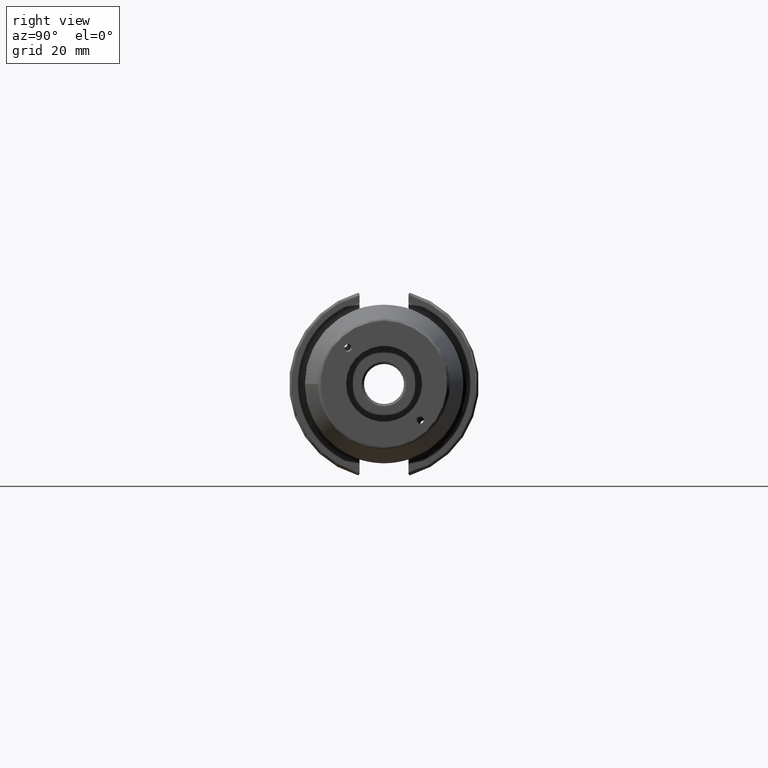
[diagram: clean part render]
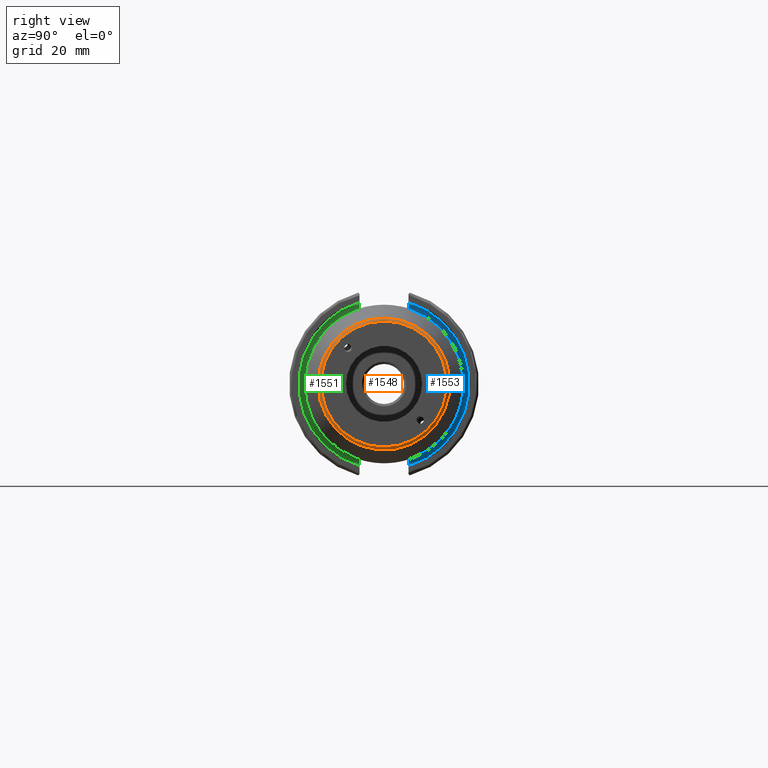
[diagram: same view with three faces highlighted in distinct colors, each labeled with its STEP entity id]
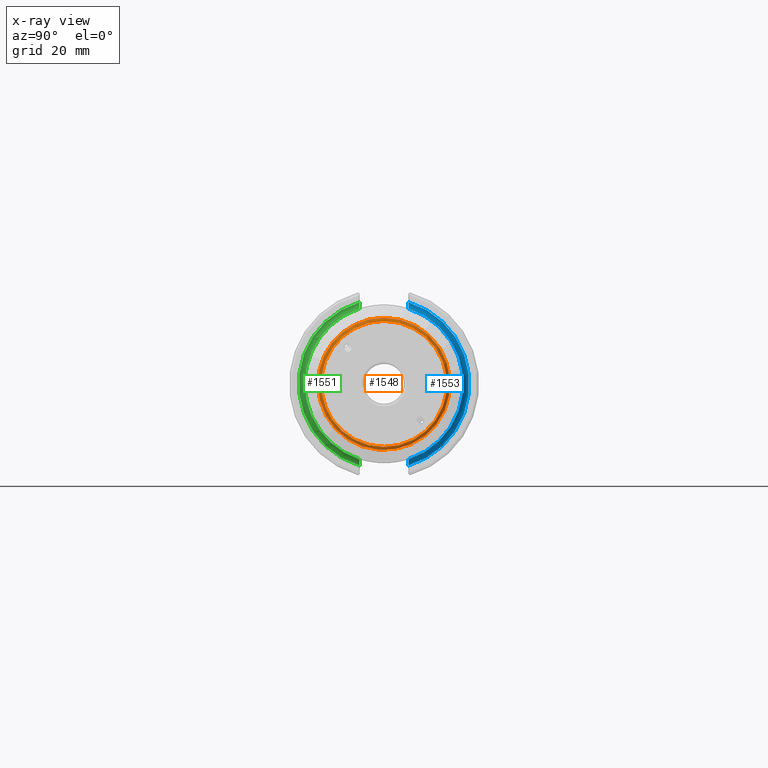
[diagram: x-ray of the same camera — body ghosted, the three highlighted faces saturated]
A machine part, right view with three faces highlighted in distinct colors.
The next image is the same camera in x-ray (body ghosted, the three faces saturated) — at least one of them is partly hidden behind the body in this view.
Their STEP definitions:

[orange] entity #1548 — the highlighted toroidal blend (fillet) surface has major radius 21.0756 mm and minor (blend) radius 1 mm.
#34=TOROIDAL_SURFACE('',#1689,21.0756095083418,1.);
#209=FACE_OUTER_BOUND('',#301,.T.);
#301=EDGE_LOOP('',(#1179,#1180,#1181,#1182,#1183));
#578=CIRCLE('',#1690,21.0756095083418);
#579=CIRCLE('',#1691,1.);
#580=CIRCLE('',#1692,22.0725268420749);
#581=CIRCLE('',#1693,22.0725268420749);
#715=VERTEX_POINT('',#2745);
#716=VERTEX_POINT('',#2747);
#717=VERTEX_POINT('',#2749);
#897=EDGE_CURVE('',#715,#715,#578,.T.);
#898=EDGE_CURVE('',#715,#716,#579,.T.);
#899=EDGE_CURVE('',#716,#717,#580,.T.);
#900=EDGE_CURVE('',#717,#716,#581,.T.);
#1179=ORIENTED_EDGE('',*,*,#897,.T.);
#1180=ORIENTED_EDGE('',*,*,#898,.T.);
#1181=ORIENTED_EDGE('',*,*,#899,.T.);
#1182=ORIENTED_EDGE('',*,*,#900,.T.);
#1183=ORIENTED_EDGE('',*,*,#898,.F.);
#1548=ADVANCED_FACE('',(#209),#34,.T.);
#1689=AXIS2_PLACEMENT_3D('',#2744,#1966,#1967);
#1690=AXIS2_PLACEMENT_3D('',#2746,#1968,#1969);
#1691=AXIS2_PLACEMENT_3D('',#2748,#1970,#1971);
#1692=AXIS2_PLACEMENT_3D('',#2750,#1972,#1973);
#1693=AXIS2_PLACEMENT_3D('',#2751,#1974,#1975);
#1966=DIRECTION('center_axis',(1.,0.,0.));
#1967=DIRECTION('ref_axis',(0.,0.,-1.));
#1968=DIRECTION('center_axis',(-1.,0.,0.));
#1969=DIRECTION('ref_axis',(0.,-1.,1.83697019872103E-16));
#1970=DIRECTION('center_axis',(0.,-1.,-1.22464679914735E-16));
#1971=DIRECTION('ref_axis',(0.,-1.22464679914735E-16,1.));
#1972=DIRECTION('center_axis',(1.,0.,0.));
#1973=DIRECTION('ref_axis',(0.,-1.,3.06161699786838E-17));
#1974=DIRECTION('center_axis',(1.,0.,0.));
#1975=DIRECTION('ref_axis',(0.,-1.,3.06161699786838E-17));
#2744=CARTESIAN_POINT('Origin',(159.,0.,0.));
#2745=CARTESIAN_POINT('',(160.,-2.58101777244703E-15,21.0756095083418));
#2746=CARTESIAN_POINT('Origin',(160.,0.,0.));
#2747=CARTESIAN_POINT('',(159.078459095728,-2.70310493462411E-15,22.0725268420749));
#2748=CARTESIAN_POINT('Origin',(159.,-2.58101777244703E-15,21.0756095083418));
#2749=CARTESIAN_POINT('',(159.078459095728,-22.0725268420749,-2.70310493462411E-15));
#2750=CARTESIAN_POINT('Origin',(159.078459095728,0.,-3.37888116828014E-15));
#2751=CARTESIAN_POINT('Origin',(159.078459095728,0.,-3.37888116828014E-15));

[blue] entity #1553 — the highlighted toroidal blend (fillet) surface has major radius 28.5 mm and minor (blend) radius 2 mm.
#36=TOROIDAL_SURFACE('',#1704,28.5,2.);
#57=B_SPLINE_CURVE_WITH_KNOTS('',3,(#2301,#2302,#2303,#2304,#2305,#2306,
#2307,#2308,#2309,#2310),.UNSPECIFIED.,.F.,.F.,(4,2,2,2,4),(0.612119541151845,
0.678481584405861,0.753299144472668,0.830274060732004,0.908773384232723),
 .UNSPECIFIED.);
#60=B_SPLINE_CURVE_WITH_KNOTS('',3,(#2352,#2353,#2354,#2355),
 .UNSPECIFIED.,.F.,.F.,(4,4),(-0.00665181923363732,0.),.UNSPECIFIED.);
#75=B_SPLINE_CURVE_WITH_KNOTS('',3,(#2590,#2591,#2592,#2593),
 .UNSPECIFIED.,.F.,.F.,(4,4),(-0.00700935198815657,-0.000357531234604297),
 .UNSPECIFIED.);
#86=B_SPLINE_CURVE_WITH_KNOTS('',3,(#2789,#2790,#2791,#2792,#2793,#2794,
#2795,#2796),.UNSPECIFIED.,.F.,.F.,(4,2,2,4),(0.30235413598056,0.380849955756906,
0.457822572712346,0.503300458912894),.UNSPECIFIED.);
#87=B_SPLINE_CURVE_WITH_KNOTS('',3,(#2797,#2798,#2799,#2800,#2801,#2802),
 .UNSPECIFIED.,.F.,.F.,(4,2,4),(0.503300458912818,0.532639529571724,0.59900244100457),
 .UNSPECIFIED.);
#214=FACE_OUTER_BOUND('',#309,.T.);
#309=EDGE_LOOP('',(#1209,#1210,#1211,#1212,#1213,#1214,#1215));
#587=CIRCLE('',#1703,26.5);
#588=CIRCLE('',#1705,28.5);
#635=VERTEX_POINT('',#2299);
#636=VERTEX_POINT('',#2300);
#649=VERTEX_POINT('',#2351);
#687=VERTEX_POINT('',#2570);
#688=VERTEX_POINT('',#2589);
#724=VERTEX_POINT('',#2786);
#725=VERTEX_POINT('',#2788);
#797=EDGE_CURVE('',#635,#636,#57,.T.);
#811=EDGE_CURVE('',#649,#635,#60,.T.);
#859=EDGE_CURVE('',#688,#687,#75,.T.);
#911=EDGE_CURVE('',#687,#649,#587,.T.);
#912=EDGE_CURVE('',#636,#724,#588,.T.);
#913=EDGE_CURVE('',#725,#724,#86,.F.);
#914=EDGE_CURVE('',#725,#688,#87,.T.);
#1209=ORIENTED_EDGE('',*,*,#797,.T.);
#1210=ORIENTED_EDGE('',*,*,#912,.T.);
#1211=ORIENTED_EDGE('',*,*,#913,.F.);
#1212=ORIENTED_EDGE('',*,*,#914,.T.);
#1213=ORIENTED_EDGE('',*,*,#859,.T.);
#1214=ORIENTED_EDGE('',*,*,#911,.T.);
#1215=ORIENTED_EDGE('',*,*,#811,.T.);
#1553=ADVANCED_FACE('',(#214),#36,.F.);
#1703=AXIS2_PLACEMENT_3D('',#2784,#1997,#1998);
#1704=AXIS2_PLACEMENT_3D('',#2785,#1999,#2000);
#1705=AXIS2_PLACEMENT_3D('',#2787,#2001,#2002);
#1997=DIRECTION('center_axis',(-1.,0.,0.));
#1998=DIRECTION('ref_axis',(0.,0.999990043367962,0.00446241693951042));
#1999=DIRECTION('center_axis',(-1.,0.,0.));
#2000=DIRECTION('ref_axis',(0.,0.,1.));
#2001=DIRECTION('center_axis',(1.,0.,0.));
#2002=DIRECTION('ref_axis',(0.,0.999990043367962,0.00446241693951042));
#2299=CARTESIAN_POINT('',(20.9835,8.193,-25.2028443481973));
#2300=CARTESIAN_POINT('',(19.05,8.193,-27.2969732937555));
#2301=CARTESIAN_POINT('Ctrl Pts',(20.9835,8.193,-25.2028443481973));
#2302=CARTESIAN_POINT('Ctrl Pts',(20.7560381690852,8.193,-25.2108014483191));
#2303=CARTESIAN_POINT('Ctrl Pts',(20.5012262885427,8.193,-25.2692633480175));
#2304=CARTESIAN_POINT('Ctrl Pts',(20.0683681647216,8.193,-25.4539169700481));
#2305=CARTESIAN_POINT('Ctrl Pts',(19.822472285677,8.193,-25.6244980164116));
#2306=CARTESIAN_POINT('Ctrl Pts',(19.4700544952032,8.193,-25.9875576833077));
#2307=CARTESIAN_POINT('Ctrl Pts',(19.3031787511537,8.193,-26.2463137262865));
#2308=CARTESIAN_POINT('Ctrl Pts',(19.1094544893612,8.193,-26.7269917331376));
#2309=CARTESIAN_POINT('Ctrl Pts',(19.05,8.193,-27.0353088820864));
#2310=CARTESIAN_POINT('Ctrl Pts',(19.05,8.193,-27.2969732937555));
#2351=CARTESIAN_POINT('',(21.05,8.19273006635756,-25.2017692644743));
#2352=CARTESIAN_POINT('Ctrl Pts',(21.05,8.19273006635756,-25.2017692644743));
#2353=CARTESIAN_POINT('Ctrl Pts',(21.0278285169396,8.19291006418591,-25.2017107497881));
#2354=CARTESIAN_POINT('Ctrl Pts',(21.0056591762821,8.193,-25.2020691729357));
#2355=CARTESIAN_POINT('Ctrl Pts',(20.9835,8.193,-25.2028443481973));
#2570=CARTESIAN_POINT('',(21.05,8.18973006635756,25.202744323589));
#2589=CARTESIAN_POINT('',(20.9835,8.19,25.2038193978504));
#2590=CARTESIAN_POINT('Ctrl Pts',(20.9835,8.19,25.2038193978504));
#2591=CARTESIAN_POINT('Ctrl Pts',(21.005659181932,8.19,25.20304425238));
#2592=CARTESIAN_POINT('Ctrl Pts',(21.027828522676,8.18991006413934,25.2026858326078));
#2593=CARTESIAN_POINT('Ctrl Pts',(21.05,8.18973006635755,25.202744323589));
#2784=CARTESIAN_POINT('Origin',(21.05,0.,0.));
#2785=CARTESIAN_POINT('Origin',(21.05,0.,0.));
#2786=CARTESIAN_POINT('',(19.05,8.19,27.2978735435565));
#2787=CARTESIAN_POINT('Origin',(19.05,0.,0.));
#2788=CARTESIAN_POINT('',(20.0244662958217,8.19000000000165,25.5000000000049));
#2789=CARTESIAN_POINT('Ctrl Pts',(19.05,8.19,27.2978735435565));
#2790=CARTESIAN_POINT('Ctrl Pts',(19.05,8.19,27.0362208109687));
#2791=CARTESIAN_POINT('Ctrl Pts',(19.1094531968333,8.19,26.7279176858725));
#2792=CARTESIAN_POINT('Ctrl Pts',(19.3031737487845,8.19,26.2472590391816));
#2793=CARTESIAN_POINT('Ctrl Pts',(19.4700477206645,8.19,25.9885127973065));
#2794=CARTESIAN_POINT('Ctrl Pts',(19.7543453755304,8.19,25.695636986831));
#2795=CARTESIAN_POINT('Ctrl Pts',(19.8850320103989,8.19,25.5874688145189));
#2796=CARTESIAN_POINT('Ctrl Pts',(20.0244662958232,8.19,25.5000000000057));
#2797=CARTESIAN_POINT('Ctrl Pts',(20.0244662958225,8.19,25.5000000000061));
#2798=CARTESIAN_POINT('Ctrl Pts',(20.1144192970305,8.19,25.4435713938449));
#2799=CARTESIAN_POINT('Ctrl Pts',(20.2077952907399,8.19,25.3954068244709));
#2800=CARTESIAN_POINT('Ctrl Pts',(20.5012195798839,8.19,25.2702373320517));
#2801=CARTESIAN_POINT('Ctrl Pts',(20.7560352058821,8.19,25.2117762937943));
#2802=CARTESIAN_POINT('Ctrl Pts',(20.9835,8.19,25.2038193978504));

[green] entity #1551 — the highlighted toroidal blend (fillet) surface has major radius 28.5 mm and minor (blend) radius 2 mm.
#35=TOROIDAL_SURFACE('',#1698,28.5,2.);
#70=B_SPLINE_CURVE_WITH_KNOTS('',3,(#2515,#2516,#2517,#2518,#2519,#2520,
#2521,#2522,#2523,#2524),.UNSPECIFIED.,.F.,.F.,(4,2,2,2,4),(0.612119541151845,
0.67848158440586,0.753299144472668,0.830274060732004,0.908773384232722),
 .UNSPECIFIED.);
#73=B_SPLINE_CURVE_WITH_KNOTS('',3,(#2566,#2567,#2568,#2569),
 .UNSPECIFIED.,.F.,.F.,(4,4),(-0.00665182081254744,0.),.UNSPECIFIED.);
#84=B_SPLINE_CURVE_WITH_KNOTS('',3,(#2763,#2764,#2765,#2766,#2767,#2768,
#2769,#2770,#2771,#2772),.UNSPECIFIED.,.F.,.F.,(4,2,2,2,4),(0.30235413598056,
0.380849955756906,0.457822572712345,0.532639529571725,0.599002441004659),
 .UNSPECIFIED.);
#85=B_SPLINE_CURVE_WITH_KNOTS('',3,(#2774,#2775,#2776,#2777),
 .UNSPECIFIED.,.F.,.F.,(4,4),(0.599002441004659,0.605555811664728),
 .UNSPECIFIED.);
#212=FACE_OUTER_BOUND('',#307,.T.);
#307=EDGE_LOOP('',(#1193,#1194,#1195,#1196,#1197,#1198,#1199));
#584=CIRCLE('',#1699,28.5);
#585=CIRCLE('',#1700,26.5);
#586=CIRCLE('',#1701,26.5);
#672=VERTEX_POINT('',#2513);
#673=VERTEX_POINT('',#2514);
#686=VERTEX_POINT('',#2565);
#720=VERTEX_POINT('',#2760);
#721=VERTEX_POINT('',#2762);
#722=VERTEX_POINT('',#2773);
#723=VERTEX_POINT('',#2778);
#843=EDGE_CURVE('',#672,#673,#70,.T.);
#857=EDGE_CURVE('',#686,#672,#73,.T.);
#904=EDGE_CURVE('',#673,#720,#584,.T.);
#905=EDGE_CURVE('',#721,#720,#84,.F.);
#906=EDGE_CURVE('',#722,#721,#85,.F.);
#907=EDGE_CURVE('',#722,#723,#585,.T.);
#908=EDGE_CURVE('',#723,#686,#586,.T.);
#1193=ORIENTED_EDGE('',*,*,#843,.T.);
#1194=ORIENTED_EDGE('',*,*,#904,.T.);
#1195=ORIENTED_EDGE('',*,*,#905,.F.);
#1196=ORIENTED_EDGE('',*,*,#906,.F.);
#1197=ORIENTED_EDGE('',*,*,#907,.T.);
#1198=ORIENTED_EDGE('',*,*,#908,.T.);
#1199=ORIENTED_EDGE('',*,*,#857,.T.);
#1551=ADVANCED_FACE('',(#212),#35,.F.);
#1698=AXIS2_PLACEMENT_3D('',#2759,#1985,#1986);
#1699=AXIS2_PLACEMENT_3D('',#2761,#1987,#1988);
#1700=AXIS2_PLACEMENT_3D('',#2779,#1989,#1990);
#1701=AXIS2_PLACEMENT_3D('',#2780,#1991,#1992);
#1985=DIRECTION('center_axis',(-1.,0.,0.));
#1986=DIRECTION('ref_axis',(0.,0.,1.));
#1987=DIRECTION('center_axis',(1.,0.,0.));
#1988=DIRECTION('ref_axis',(0.,-0.999990043367962,0.00446241693951007));
#1989=DIRECTION('center_axis',(-1.,0.,0.));
#1990=DIRECTION('ref_axis',(0.,-0.999990043367962,0.00446241693951007));
#1991=DIRECTION('center_axis',(-1.,0.,0.));
#1992=DIRECTION('ref_axis',(0.,-0.999990043367962,0.00446241693951007));
#2513=CARTESIAN_POINT('',(20.9835,-8.193,25.2028443481973));
#2514=CARTESIAN_POINT('',(19.05,-8.193,27.2969732937555));
#2515=CARTESIAN_POINT('Ctrl Pts',(20.9835,-8.193,25.2028443481973));
#2516=CARTESIAN_POINT('Ctrl Pts',(20.7560381690852,-8.193,25.2108014483191));
#2517=CARTESIAN_POINT('Ctrl Pts',(20.5012262885427,-8.193,25.2692633480175));
#2518=CARTESIAN_POINT('Ctrl Pts',(20.0683681647216,-8.193,25.4539169700481));
#2519=CARTESIAN_POINT('Ctrl Pts',(19.822472285677,-8.193,25.6244980164116));
#2520=CARTESIAN_POINT('Ctrl Pts',(19.4700544952032,-8.193,25.9875576833077));
#2521=CARTESIAN_POINT('Ctrl Pts',(19.3031787511537,-8.193,26.2463137262865));
#2522=CARTESIAN_POINT('Ctrl Pts',(19.1094544893612,-8.193,26.7269917331376));
#2523=CARTESIAN_POINT('Ctrl Pts',(19.05,-8.193,27.0353088820864));
#2524=CARTESIAN_POINT('Ctrl Pts',(19.05,-8.193,27.2969732937555));
#2565=CARTESIAN_POINT('',(21.05,-8.19273006635756,25.2017692644743));
#2566=CARTESIAN_POINT('Ctrl Pts',(21.05,-8.19273006635756,25.2017692644743));
#2567=CARTESIAN_POINT('Ctrl Pts',(21.0278285222023,-8.19291006414319,25.201710749802));
#2568=CARTESIAN_POINT('Ctrl Pts',(21.005659181542,-8.193,25.2020691727516));
#2569=CARTESIAN_POINT('Ctrl Pts',(20.9835,-8.193,25.2028443481973));
#2759=CARTESIAN_POINT('Origin',(21.05,0.,0.));
#2760=CARTESIAN_POINT('',(19.05,-8.19,-27.2978735435565));
#2761=CARTESIAN_POINT('Origin',(19.05,0.,0.));
#2762=CARTESIAN_POINT('',(20.9835,-8.19,-25.2038193978504));
#2763=CARTESIAN_POINT('Ctrl Pts',(19.05,-8.19,-27.2978735435565));
#2764=CARTESIAN_POINT('Ctrl Pts',(19.05,-8.19,-27.0362208109687));
#2765=CARTESIAN_POINT('Ctrl Pts',(19.1094531968333,-8.19,-26.7279176858725));
#2766=CARTESIAN_POINT('Ctrl Pts',(19.3031737487845,-8.19,-26.2472590391816));
#2767=CARTESIAN_POINT('Ctrl Pts',(19.4700477206645,-8.19,-25.9885127973065));
#2768=CARTESIAN_POINT('Ctrl Pts',(19.8224629313532,-8.19,-25.6254641098208));
#2769=CARTESIAN_POINT('Ctrl Pts',(20.0683591355164,-8.19,-25.4548877652789));
#2770=CARTESIAN_POINT('Ctrl Pts',(20.5012195798842,-8.19,-25.2702373320516));
#2771=CARTESIAN_POINT('Ctrl Pts',(20.7560352058828,-8.19,-25.2117762937942));
#2772=CARTESIAN_POINT('Ctrl Pts',(20.9835000000009,-8.19,-25.2038193978504));
#2773=CARTESIAN_POINT('',(21.05,-8.19,-25.2026566060009));
#2774=CARTESIAN_POINT('Ctrl Pts',(20.9835000000009,-8.19,-25.2038193978504));
#2775=CARTESIAN_POINT('Ctrl Pts',(21.0059622620655,-8.19,-25.2030336504005));
#2776=CARTESIAN_POINT('Ctrl Pts',(21.0281554311331,-8.19,-25.2026566060009));
#2777=CARTESIAN_POINT('Ctrl Pts',(21.05,-8.19,-25.2026566060009));
#2778=CARTESIAN_POINT('',(21.05,-26.5,-3.24531401774049E-15));
#2779=CARTESIAN_POINT('Origin',(21.05,0.,0.));
#2780=CARTESIAN_POINT('Origin',(21.05,0.,0.));